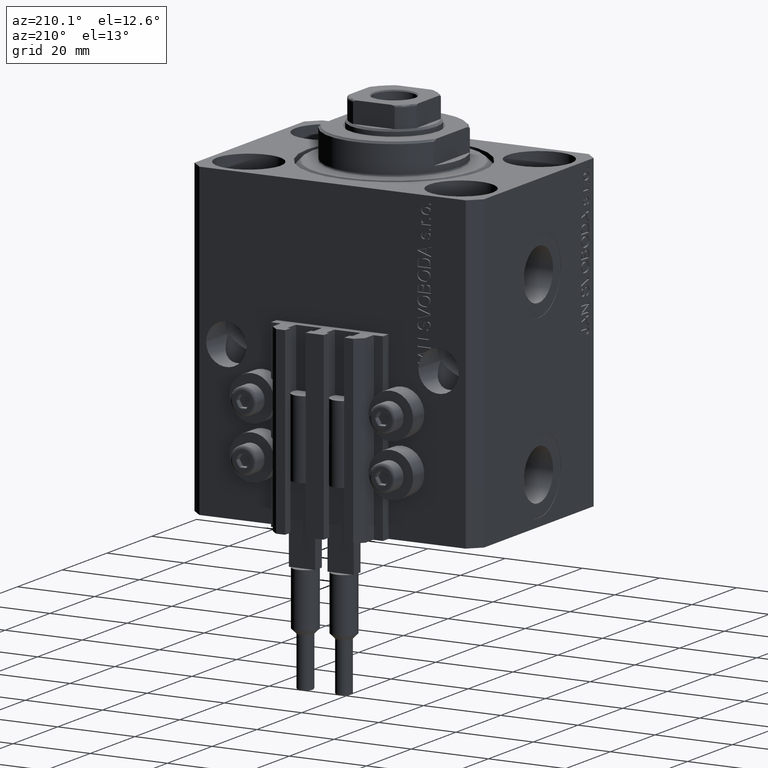
[diagram: clean part render]
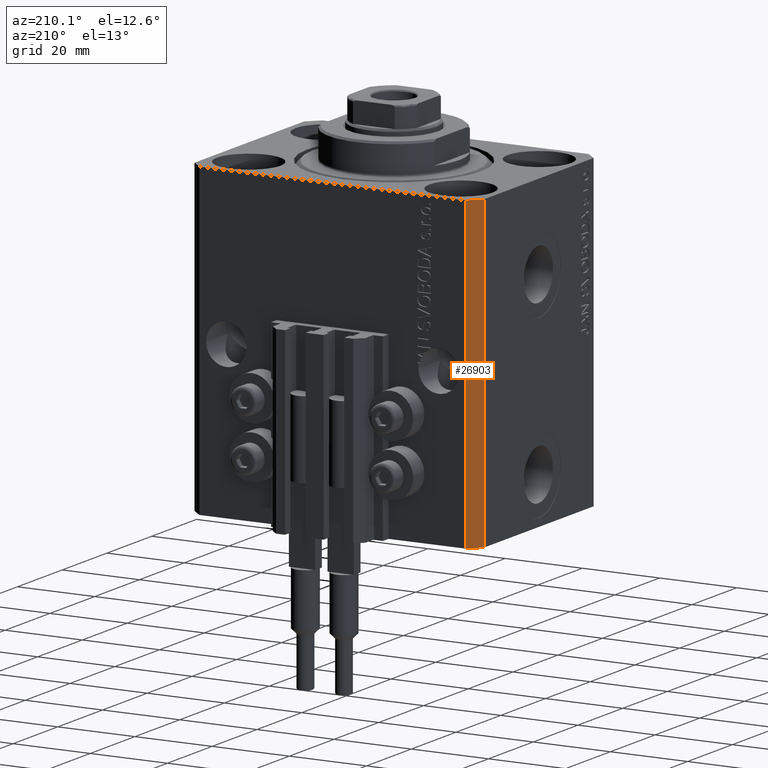
[diagram: same view with one face highlighted and labeled with its STEP entity id]
A machine part, auxiliary view. The second image highlights one B-rep face of the part: STEP entity #26903.
In plain terms, the highlighted planar face has unit normal (-0.7071, 0.7071, 0).
Its self-contained STEP definition (entity closure, byte-faithful):
#4431 = CARTESIAN_POINT ( 'NONE',  ( -34.49999999999999289, 27.50000000000000000, 0.000000000000000000 ) ) ;
#6038 = PLANE ( 'NONE',  #40347 ) ;
#8447 = VECTOR ( 'NONE', #40313, 1000.000000000000000 ) ;
#8533 = CARTESIAN_POINT ( 'NONE',  ( -34.49999999999999289, 27.50000000000000000, -80.00000000000000000 ) ) ;
#10897 = CARTESIAN_POINT ( 'NONE',  ( -34.49999999999999289, 27.50000000000000000, 0.000000000000000000 ) ) ;
#11388 = VERTEX_POINT ( 'NONE', #4431 ) ;
#11673 = DIRECTION ( 'NONE',  ( -0.7071067811865471286, -0.7071067811865479058, 0.000000000000000000 ) ) ;
#16350 = VECTOR ( 'NONE', #29815, 1000.000000000000000 ) ;
#16449 = ORIENTED_EDGE ( 'NONE', *, *, #23754, .F. ) ;
#17269 = VERTEX_POINT ( 'NONE', #23236 ) ;
#17607 = ORIENTED_EDGE ( 'NONE', *, *, #35368, .T. ) ;
#18116 = LINE ( 'NONE', #10897, #8447 ) ;
#18740 = EDGE_LOOP ( 'NONE', ( #22960, #16449, #17607, #23212 ) ) ;
#19441 = CARTESIAN_POINT ( 'NONE',  ( -34.49999999999999289, 27.50000000000000000, -80.00000000000000000 ) ) ;
#20001 = DIRECTION ( 'NONE',  ( -0.7071067811865471286, -0.7071067811865479058, 0.000000000000000000 ) ) ;
#22960 = ORIENTED_EDGE ( 'NONE', *, *, #45259, .F. ) ;
#23212 = ORIENTED_EDGE ( 'NONE', *, *, #45448, .T. ) ;
#23236 = CARTESIAN_POINT ( 'NONE',  ( -34.49999999999999289, 27.50000000000000000, -80.00000000000000000 ) ) ;
#23754 = EDGE_CURVE ( 'NONE', #17269, #11388, #30052, .T. ) ;
#26903 = ADVANCED_FACE ( 'NONE', ( #45819 ), #6038, .T. ) ;
#26958 = VECTOR ( 'NONE', #38818, 1000.000000000000000 ) ;
#28870 = VERTEX_POINT ( 'NONE', #38312 ) ;
#29815 = DIRECTION ( 'NONE',  ( 0.000000000000000000, 0.000000000000000000, 1.000000000000000000 ) ) ;
#30052 = LINE ( 'NONE', #19441, #16350 ) ;
#30864 = LINE ( 'NONE', #34724, #26958 ) ;
#34724 = CARTESIAN_POINT ( 'NONE',  ( -37.49999999999999289, 24.50000000000000000, -80.00000000000000000 ) ) ;
#34726 = DIRECTION ( 'NONE',  ( -0.7071067811865479058, 0.7071067811865471286, 0.000000000000000000 ) ) ;
#35368 = EDGE_CURVE ( 'NONE', #17269, #43725, #41556, .T. ) ;
#37467 = CARTESIAN_POINT ( 'NONE',  ( -37.49999999999999289, 24.50000000000000000, -80.00000000000000000 ) ) ;
#38312 = CARTESIAN_POINT ( 'NONE',  ( -37.49999999999999289, 24.50000000000000000, 0.000000000000000000 ) ) ;
#38818 = DIRECTION ( 'NONE',  ( 0.000000000000000000, 0.000000000000000000, 1.000000000000000000 ) ) ;
#39052 = CARTESIAN_POINT ( 'NONE',  ( -34.49999999999999289, 27.50000000000000000, -80.00000000000000000 ) ) ;
#40313 = DIRECTION ( 'NONE',  ( -0.7071067811865471286, -0.7071067811865479058, 0.000000000000000000 ) ) ;
#40347 = AXIS2_PLACEMENT_3D ( 'NONE', #39052, #34726, #20001 ) ;
#41556 = LINE ( 'NONE', #8533, #47551 ) ;
#43725 = VERTEX_POINT ( 'NONE', #37467 ) ;
#45259 = EDGE_CURVE ( 'NONE', #11388, #28870, #18116, .T. ) ;
#45448 = EDGE_CURVE ( 'NONE', #43725, #28870, #30864, .T. ) ;
#45819 = FACE_OUTER_BOUND ( 'NONE', #18740, .T. ) ;
#47551 = VECTOR ( 'NONE', #11673, 1000.000000000000000 ) ;